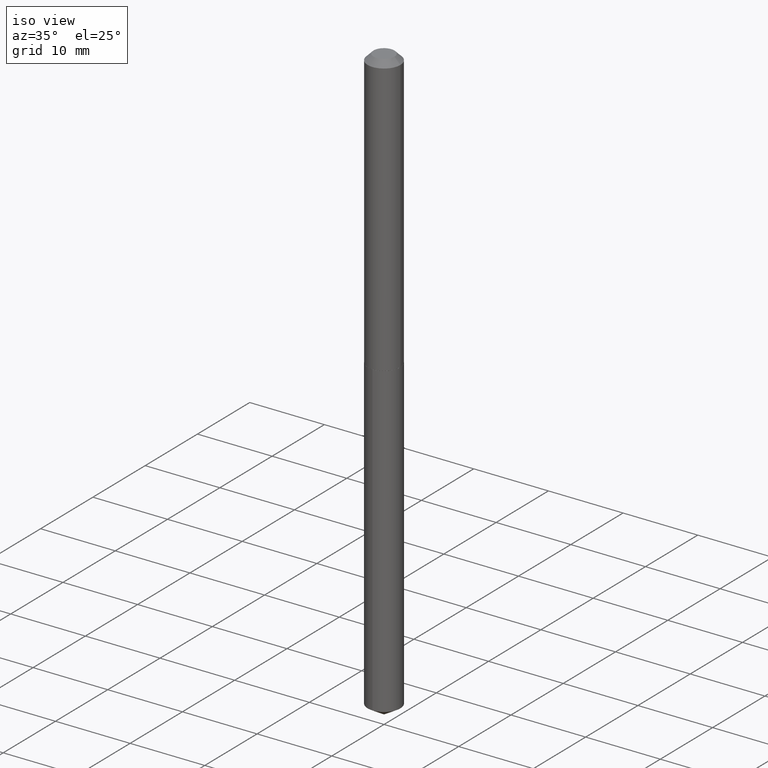
[diagram: clean part render]
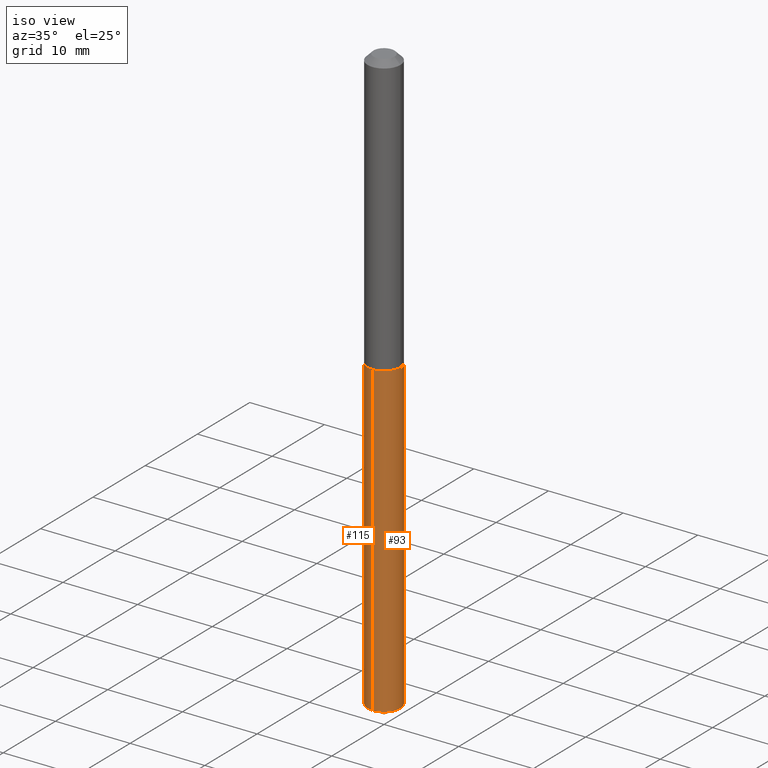
[diagram: same view with one multi-face feature highlighted, each face labeled with its STEP entity id]
A machine part, iso view. The highlighted faces form ONE feature: a constant-radius fillet chain: 2 tangent blend faces with common blend radius 2.1996 mm. The faces share edges in the B-rep.
Their STEP definitions:
[1] entity #93 (Cylinder):
#15 = DIRECTION ( 'NONE',  ( -2.445439512287400086E-29, 3.491523289372008919E-15, 1.000000000000000000 ) ) ;
#20 = DIRECTION ( 'NONE',  ( -2.445439512287400366E-29, 3.491523289372008919E-15, 1.000000000000000000 ) ) ;
#30 = VERTEX_POINT ( 'NONE', #31 ) ;
#31 = CARTESIAN_POINT ( 'NONE',  ( -6.047245678875547006E-16, -0.08660000000001079334, -3.097565470392213971 ) ) ;
#52 = EDGE_CURVE ( 'NONE', #335, #149, #248, .T. ) ;
#62 = ORIENTED_EDGE ( 'NONE', *, *, #211, .F. ) ;
#75 = DIRECTION ( 'NONE',  ( -6.982962677686265922E-15, -1.000000000000000000, 6.309117768277745325E-15 ) ) ;
#93 = ADVANCED_FACE ( 'NONE', ( #103 ), #282, .T. ) ;
#100 = CARTESIAN_POINT ( 'NONE',  ( 3.600708270226995482E-29, -5.140857123312647235E-15, -1.472400000000000153 ) ) ;
#103 = FACE_OUTER_BOUND ( 'NONE', #193, .T. ) ;
#136 = ORIENTED_EDGE ( 'NONE', *, *, #203, .T. ) ;
#145 = VECTOR ( 'NONE', #190, 39.37007874015748143 ) ;
#147 = LINE ( 'NONE', #361, #292 ) ;
#149 = VERTEX_POINT ( 'NONE', #293 ) ;
#163 = ORIENTED_EDGE ( 'NONE', *, *, #52, .T. ) ;
#172 = CARTESIAN_POINT ( 'NONE',  ( 3.600708270226995482E-29, -5.140857123312647235E-15, -1.472400000000000153 ) ) ;
#175 = CIRCLE ( 'NONE', #222, 0.08659999999999998255 ) ;
#188 = EDGE_CURVE ( 'NONE', #30, #338, #147, .T. ) ;
#190 = DIRECTION ( 'NONE',  ( -2.445439512287400086E-29, 3.491523289372008919E-15, 1.000000000000000000 ) ) ;
#193 = EDGE_LOOP ( 'NONE', ( #136, #163, #62, #305 ) ) ;
#200 = DIRECTION ( 'NONE',  ( -6.982962677686265922E-15, -1.000000000000000000, 3.154558884138872662E-15 ) ) ;
#203 = EDGE_CURVE ( 'NONE', #30, #335, #387, .T. ) ;
#211 = EDGE_CURVE ( 'NONE', #338, #149, #175, .T. ) ;
#222 = AXIS2_PLACEMENT_3D ( 'NONE', #172, #20, #200 ) ;
#224 = DIRECTION ( 'NONE',  ( -2.445439512287400366E-29, 3.491523289372008919E-15, 1.000000000000000000 ) ) ;
#248 = LINE ( 'NONE', #255, #145 ) ;
#255 = CARTESIAN_POINT ( 'NONE',  ( 6.153300091682826287E-16, 0.08659999999999484777, -1.472400000000000375 ) ) ;
#259 = CARTESIAN_POINT ( 'NONE',  ( 7.574952125529255155E-29, -1.081516021227028052E-14, -3.097565470392214415 ) ) ;
#282 = CYLINDRICAL_SURFACE ( 'NONE', #386, 0.08659999999999998255 ) ;
#292 = VECTOR ( 'NONE', #15, 39.37007874015748143 ) ;
#293 = CARTESIAN_POINT ( 'NONE',  ( 6.153300091683224662E-16, 0.08659999999999484777, -1.472400000000000375 ) ) ;
#305 = ORIENTED_EDGE ( 'NONE', *, *, #188, .F. ) ;
#323 = CARTESIAN_POINT ( 'NONE',  ( -6.047245678875945381E-16, -0.08660000000000513121, -1.472399999999999931 ) ) ;
#335 = VERTEX_POINT ( 'NONE', #339 ) ;
#338 = VERTEX_POINT ( 'NONE', #323 ) ;
#339 = CARTESIAN_POINT ( 'NONE',  ( 6.153300091683221704E-16, 0.08659999999998915787, -3.097565470392214859 ) ) ;
#345 = AXIS2_PLACEMENT_3D ( 'NONE', #259, #383, #75 ) ;
#348 = DIRECTION ( 'NONE',  ( -6.982962677686265922E-15, -1.000000000000000000, 3.154558884138872662E-15 ) ) ;
#361 = CARTESIAN_POINT ( 'NONE',  ( -6.047245678875945381E-16, -0.08660000000000513121, -1.472399999999999931 ) ) ;
#383 = DIRECTION ( 'NONE',  ( -2.445439512287400366E-29, 3.491523289372008919E-15, 1.000000000000000000 ) ) ;
#386 = AXIS2_PLACEMENT_3D ( 'NONE', #100, #224, #348 ) ;
#387 = CIRCLE ( 'NONE', #345, 0.08659999999999998255 ) ;
[2] entity #115 (Cylinder):
#15 = DIRECTION ( 'NONE',  ( -2.445439512287400086E-29, 3.491523289372008919E-15, 1.000000000000000000 ) ) ;
#27 = ORIENTED_EDGE ( 'NONE', *, *, #207, .F. ) ;
#30 = VERTEX_POINT ( 'NONE', #31 ) ;
#31 = CARTESIAN_POINT ( 'NONE',  ( -6.047245678875547006E-16, -0.08660000000001079334, -3.097565470392213971 ) ) ;
#49 = AXIS2_PLACEMENT_3D ( 'NONE', #281, #99, #101 ) ;
#52 = EDGE_CURVE ( 'NONE', #335, #149, #248, .T. ) ;
#69 = ORIENTED_EDGE ( 'NONE', *, *, #188, .T. ) ;
#73 = DIRECTION ( 'NONE',  ( -6.982962677686265922E-15, -1.000000000000000000, 3.154558884138872662E-15 ) ) ;
#79 = CARTESIAN_POINT ( 'NONE',  ( 3.600708270226995482E-29, -5.140857123312647235E-15, -1.472400000000000153 ) ) ;
#91 = EDGE_LOOP ( 'NONE', ( #362, #369, #69, #27 ) ) ;
#98 = CIRCLE ( 'NONE', #210, 0.08659999999999998255 ) ;
#99 = DIRECTION ( 'NONE',  ( -2.445439512287400366E-29, 3.491523289372008919E-15, 1.000000000000000000 ) ) ;
#101 = DIRECTION ( 'NONE',  ( -6.982962677686265922E-15, -1.000000000000000000, 6.309117768277745325E-15 ) ) ;
#111 = DIRECTION ( 'NONE',  ( -2.445439512287400366E-29, 3.491523289372008919E-15, 1.000000000000000000 ) ) ;
#115 = ADVANCED_FACE ( 'NONE', ( #232 ), #260, .T. ) ;
#145 = VECTOR ( 'NONE', #190, 39.37007874015748143 ) ;
#147 = LINE ( 'NONE', #361, #292 ) ;
#149 = VERTEX_POINT ( 'NONE', #293 ) ;
#178 = DIRECTION ( 'NONE',  ( -2.445439512287400366E-29, 3.491523289372008919E-15, 1.000000000000000000 ) ) ;
#188 = EDGE_CURVE ( 'NONE', #30, #338, #147, .T. ) ;
#190 = DIRECTION ( 'NONE',  ( -2.445439512287400086E-29, 3.491523289372008919E-15, 1.000000000000000000 ) ) ;
#204 = CIRCLE ( 'NONE', #49, 0.08659999999999998255 ) ;
#207 = EDGE_CURVE ( 'NONE', #149, #338, #98, .T. ) ;
#210 = AXIS2_PLACEMENT_3D ( 'NONE', #79, #178, #73 ) ;
#232 = FACE_OUTER_BOUND ( 'NONE', #91, .T. ) ;
#248 = LINE ( 'NONE', #255, #145 ) ;
#255 = CARTESIAN_POINT ( 'NONE',  ( 6.153300091682826287E-16, 0.08659999999999484777, -1.472400000000000375 ) ) ;
#260 = CYLINDRICAL_SURFACE ( 'NONE', #276, 0.08659999999999998255 ) ;
#276 = AXIS2_PLACEMENT_3D ( 'NONE', #381, #111, #350 ) ;
#281 = CARTESIAN_POINT ( 'NONE',  ( 7.574952125529255155E-29, -1.081516021227028052E-14, -3.097565470392214415 ) ) ;
#292 = VECTOR ( 'NONE', #15, 39.37007874015748143 ) ;
#293 = CARTESIAN_POINT ( 'NONE',  ( 6.153300091683224662E-16, 0.08659999999999484777, -1.472400000000000375 ) ) ;
#295 = EDGE_CURVE ( 'NONE', #335, #30, #204, .T. ) ;
#323 = CARTESIAN_POINT ( 'NONE',  ( -6.047245678875945381E-16, -0.08660000000000513121, -1.472399999999999931 ) ) ;
#335 = VERTEX_POINT ( 'NONE', #339 ) ;
#338 = VERTEX_POINT ( 'NONE', #323 ) ;
#339 = CARTESIAN_POINT ( 'NONE',  ( 6.153300091683221704E-16, 0.08659999999998915787, -3.097565470392214859 ) ) ;
#350 = DIRECTION ( 'NONE',  ( -6.982962677686265922E-15, -1.000000000000000000, 3.154558884138872662E-15 ) ) ;
#361 = CARTESIAN_POINT ( 'NONE',  ( -6.047245678875945381E-16, -0.08660000000000513121, -1.472399999999999931 ) ) ;
#362 = ORIENTED_EDGE ( 'NONE', *, *, #52, .F. ) ;
#369 = ORIENTED_EDGE ( 'NONE', *, *, #295, .T. ) ;
#381 = CARTESIAN_POINT ( 'NONE',  ( 3.600708270226995482E-29, -5.140857123312647235E-15, -1.472400000000000153 ) ) ;